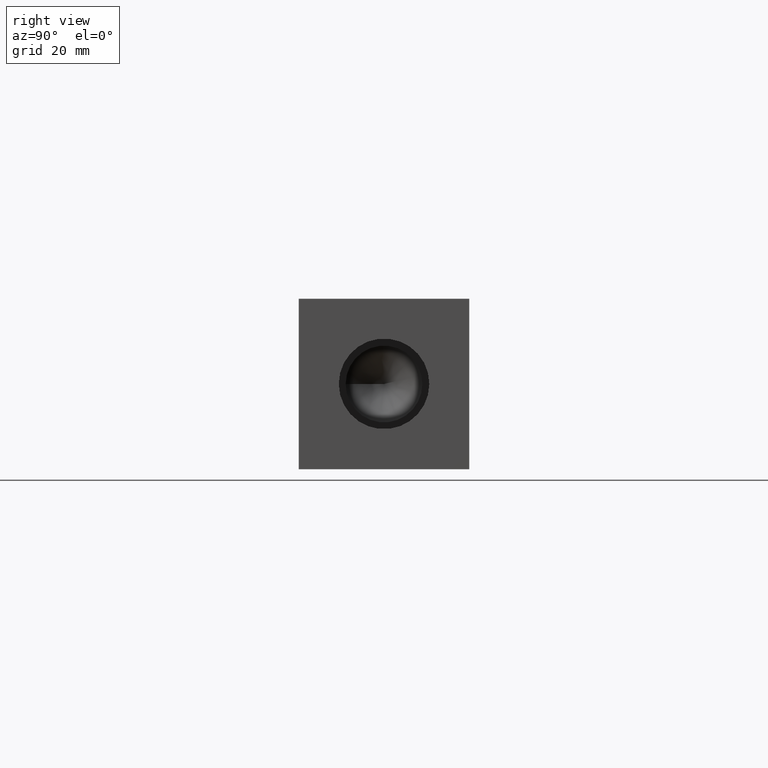
[diagram: clean part render]
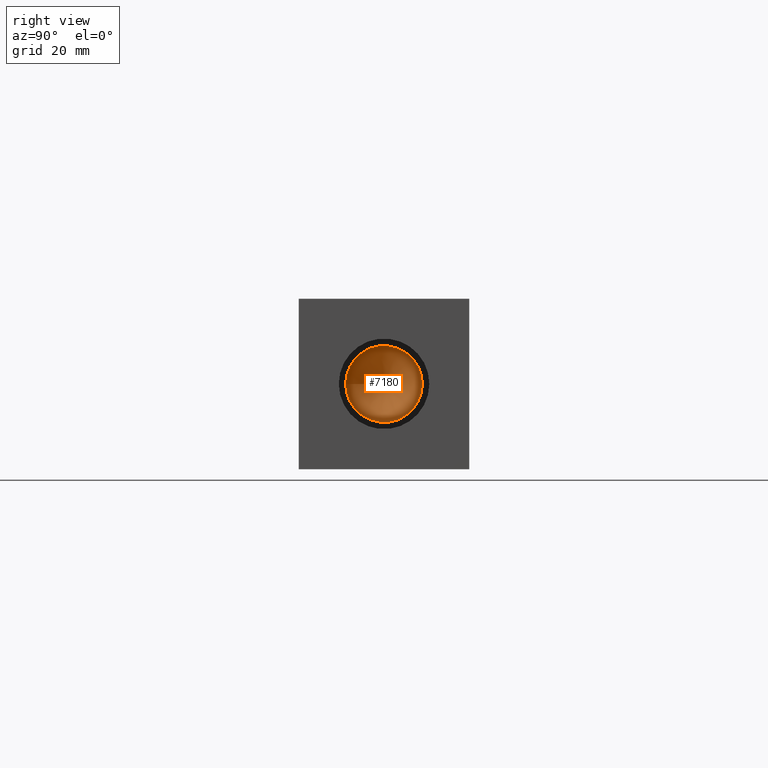
[diagram: same view with one face highlighted and labeled with its STEP entity id]
A machine part, right view. The second image highlights one B-rep face of the part: STEP entity #7180.
In plain terms, the highlighted conical surface has half-angle 60 deg.
Its self-contained STEP definition (entity closure, byte-faithful):
#52=CONICAL_SURFACE('',#7526,7.14375,1.0471975511966);
#108=CIRCLE('',#7527,14.2875);
#109=CIRCLE('',#7528,14.2875);
#758=FACE_OUTER_BOUND('',#1157,.T.);
#1157=EDGE_LOOP('',(#6357,#6358,#6359,#6360));
#1896=LINE('',#12110,#2622);
#2622=VECTOR('',#8908,7.14375);
#3462=VERTEX_POINT('',#12106);
#3463=VERTEX_POINT('',#12107);
#3464=VERTEX_POINT('',#12109);
#4438=EDGE_CURVE('',#3462,#3463,#108,.T.);
#4439=EDGE_CURVE('',#3463,#3464,#1896,.T.);
#4440=EDGE_CURVE('',#3463,#3462,#109,.T.);
#6357=ORIENTED_EDGE('',*,*,#4438,.T.);
#6358=ORIENTED_EDGE('',*,*,#4439,.T.);
#6359=ORIENTED_EDGE('',*,*,#4439,.F.);
#6360=ORIENTED_EDGE('',*,*,#4440,.T.);
#7180=ADVANCED_FACE('',(#758),#52,.F.);
#7526=AXIS2_PLACEMENT_3D('',#12105,#8904,#8905);
#7527=AXIS2_PLACEMENT_3D('',#12108,#8906,#8907);
#7528=AXIS2_PLACEMENT_3D('',#12111,#8909,#8910);
#8904=DIRECTION('center_axis',(1.,0.,0.));
#8905=DIRECTION('ref_axis',(0.,1.,0.));
#8906=DIRECTION('center_axis',(1.,0.,0.));
#8907=DIRECTION('ref_axis',(0.,1.,0.));
#8908=DIRECTION('',(-0.5,0.866025403784438,1.06057523872491E-16));
#8909=DIRECTION('center_axis',(1.,0.,0.));
#8910=DIRECTION('ref_axis',(0.,1.,0.));
#12105=CARTESIAN_POINT('Origin',(233.226464014477,31.75,31.75));
#12106=CARTESIAN_POINT('',(237.35091,46.0375,31.75));
#12107=CARTESIAN_POINT('',(237.35091,17.4625,31.75));
#12108=CARTESIAN_POINT('Origin',(237.35091,31.75,31.75));
#12109=CARTESIAN_POINT('',(229.102018028953,31.75,31.75));
#12110=CARTESIAN_POINT('',(233.226464014477,24.60625,31.75));
#12111=CARTESIAN_POINT('Origin',(237.35091,31.75,31.75));